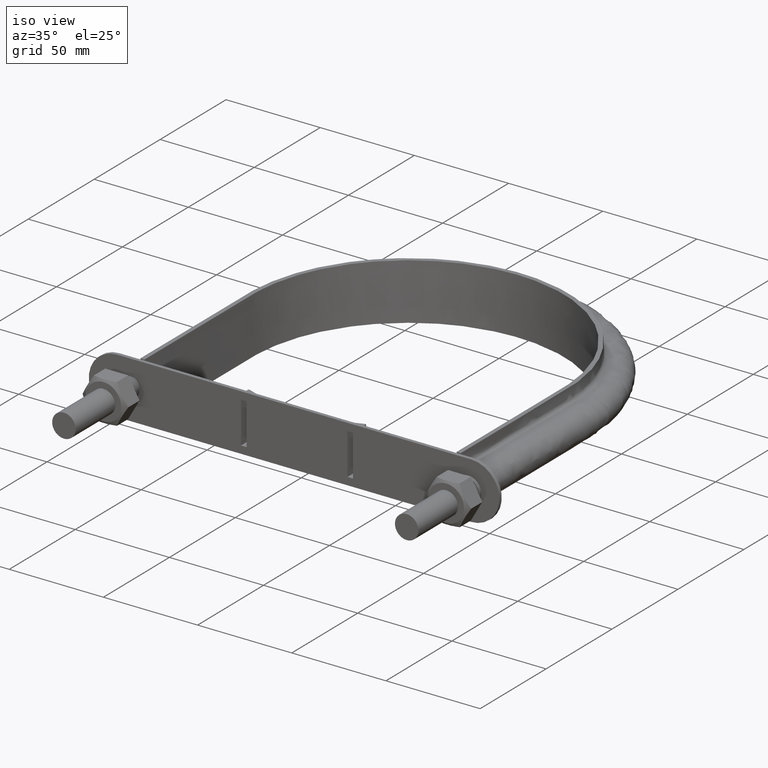
[diagram: clean part render]
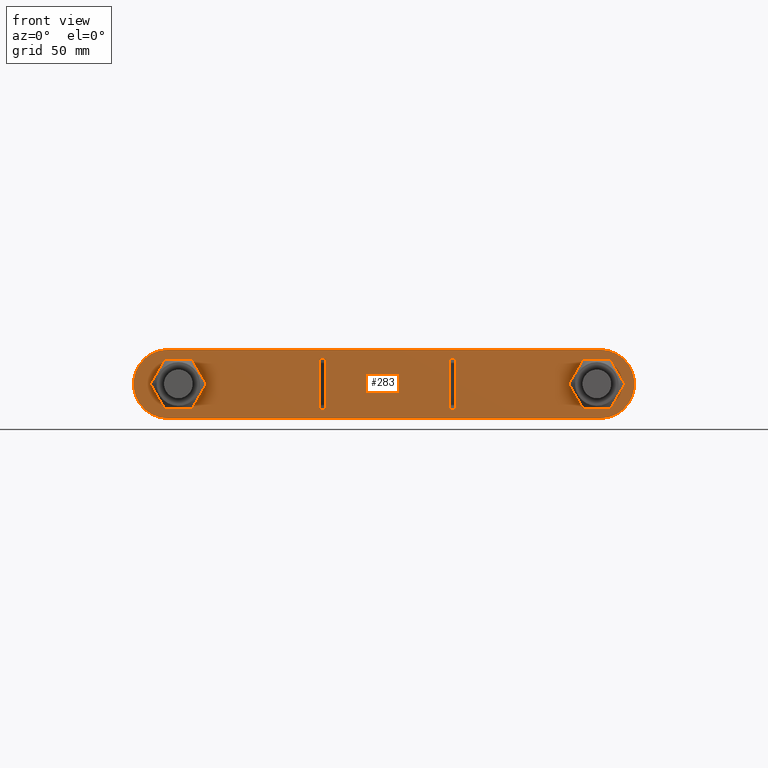
[diagram: tour spotlight — one face highlighted and labeled with its STEP entity id]
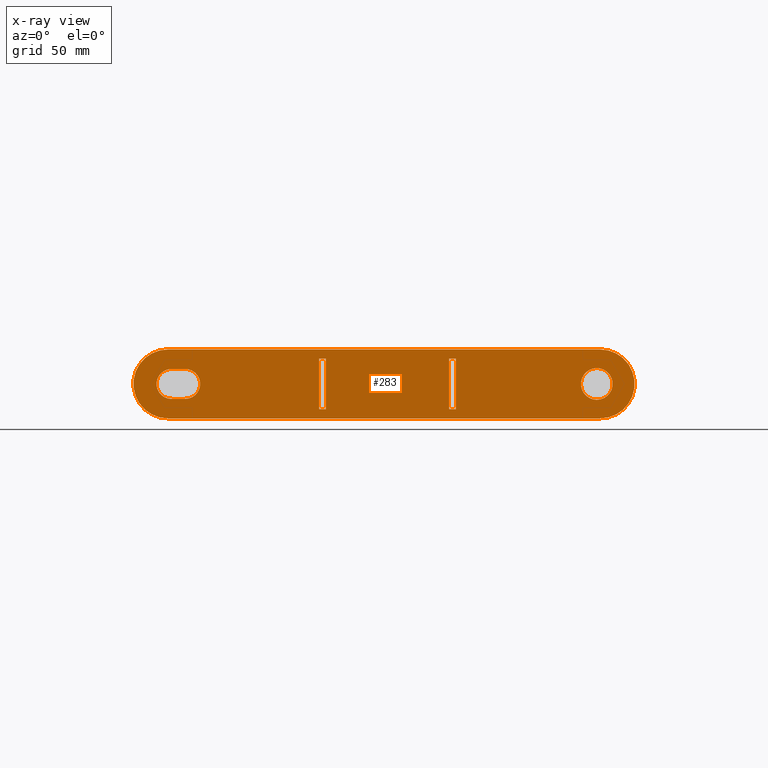
[diagram: x-ray of the same camera — body ghosted, this tour face saturated]
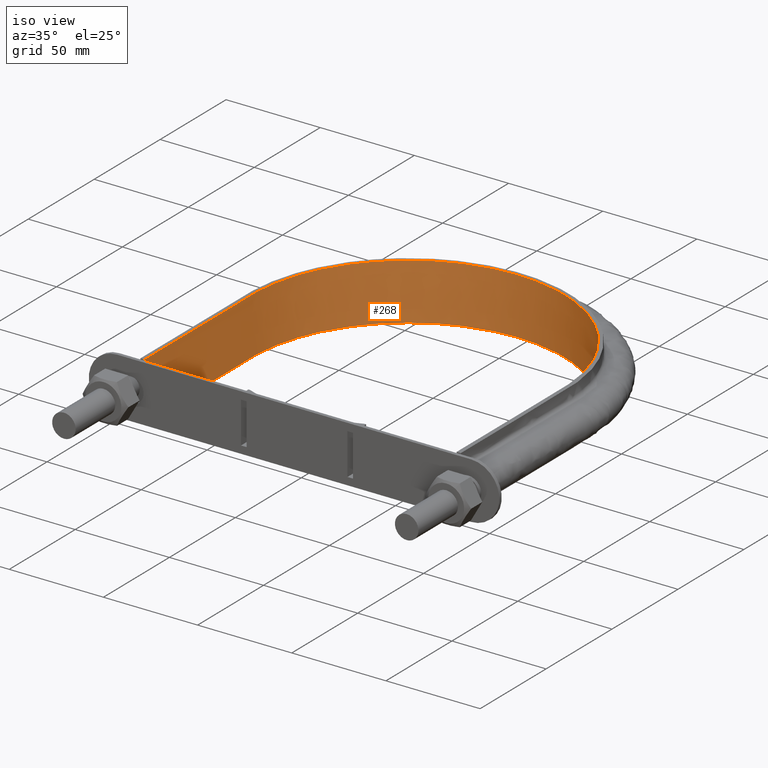
[diagram: tour spotlight — one face highlighted and labeled with its STEP entity id]
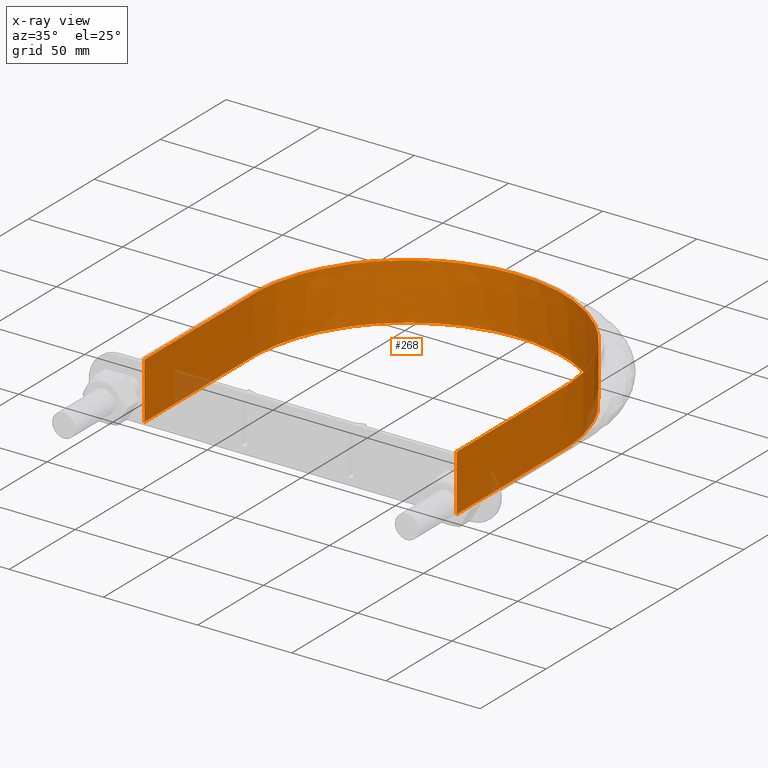
[diagram: x-ray of the same camera — body ghosted, this tour face saturated]
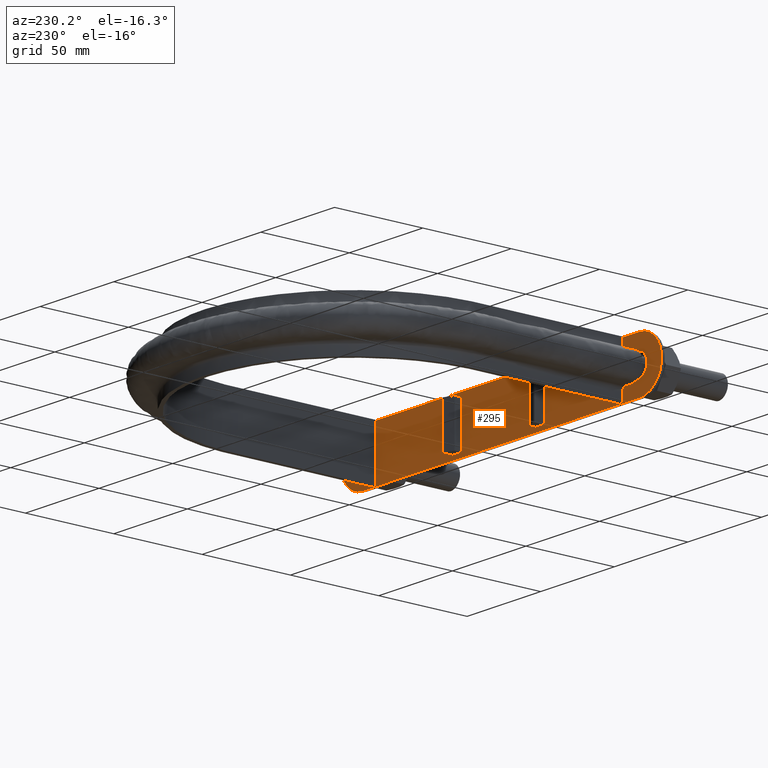
[diagram: tour spotlight — one face highlighted and labeled with its STEP entity id]
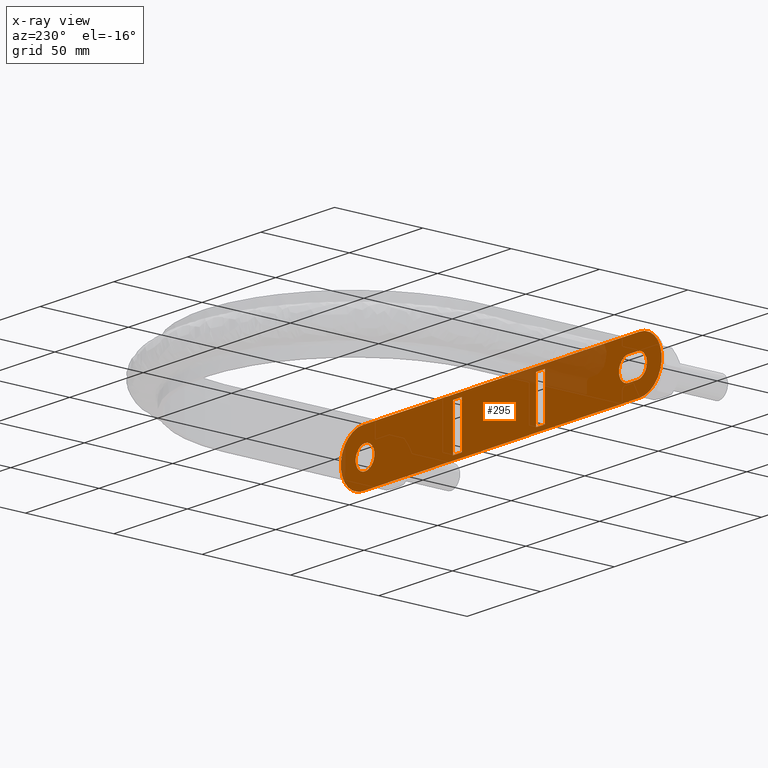
[diagram: x-ray of the same camera — body ghosted, this tour face saturated]
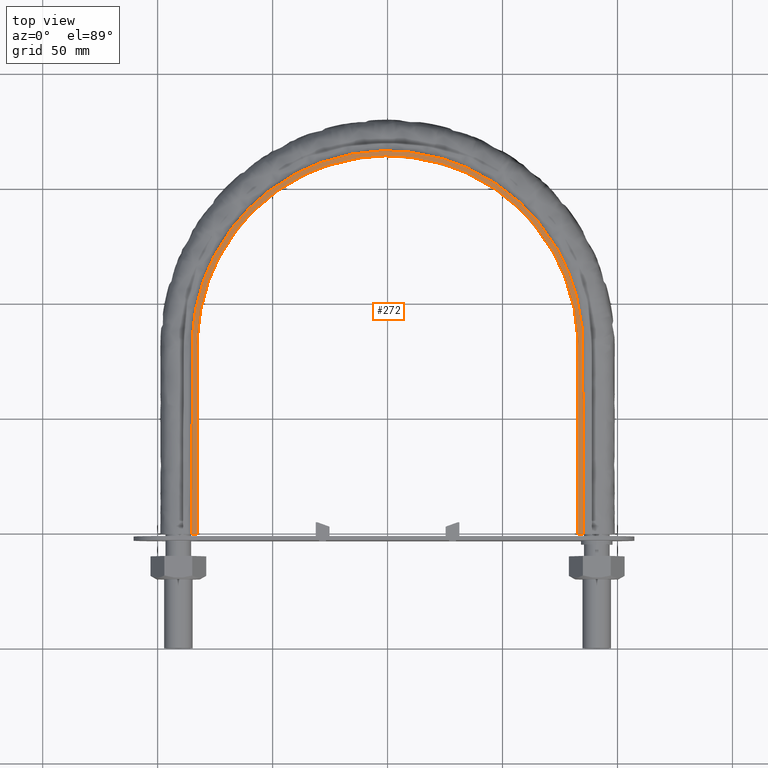
[diagram: tour spotlight — one face highlighted and labeled with its STEP entity id]
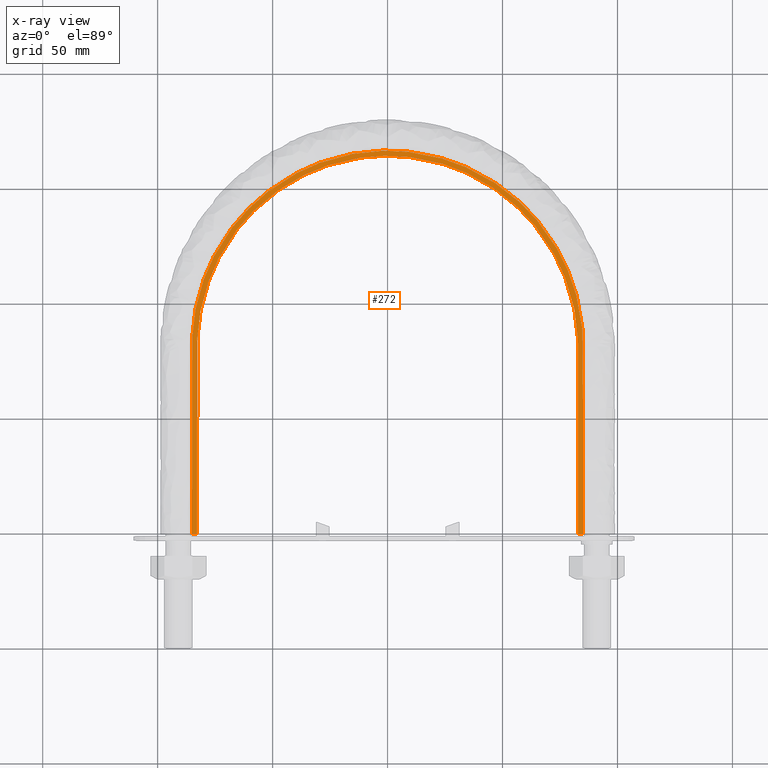
[diagram: x-ray of the same camera — body ghosted, this tour face saturated]
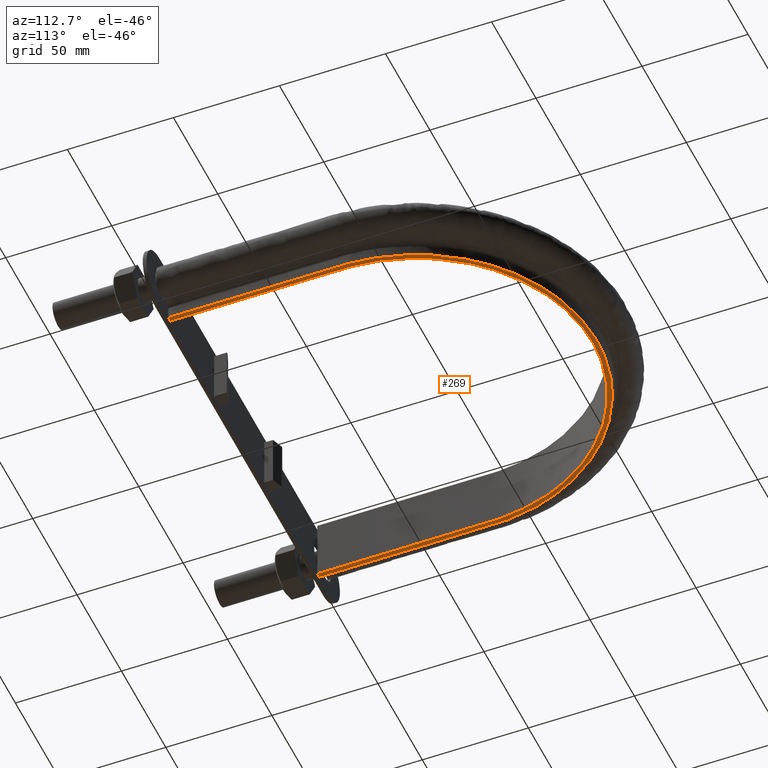
[diagram: tour spotlight — one face highlighted and labeled with its STEP entity id]
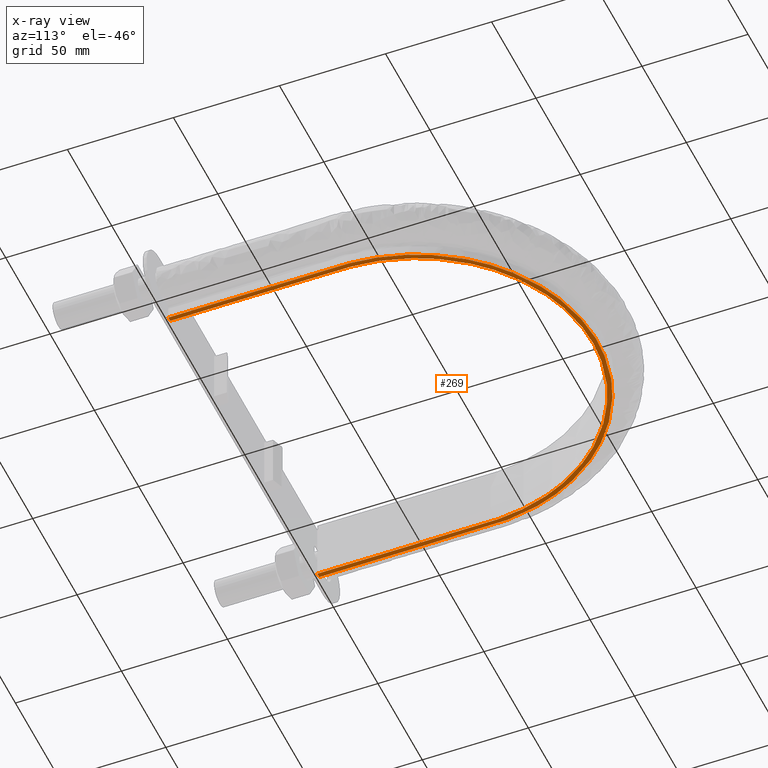
[diagram: x-ray of the same camera — body ghosted, this tour face saturated]
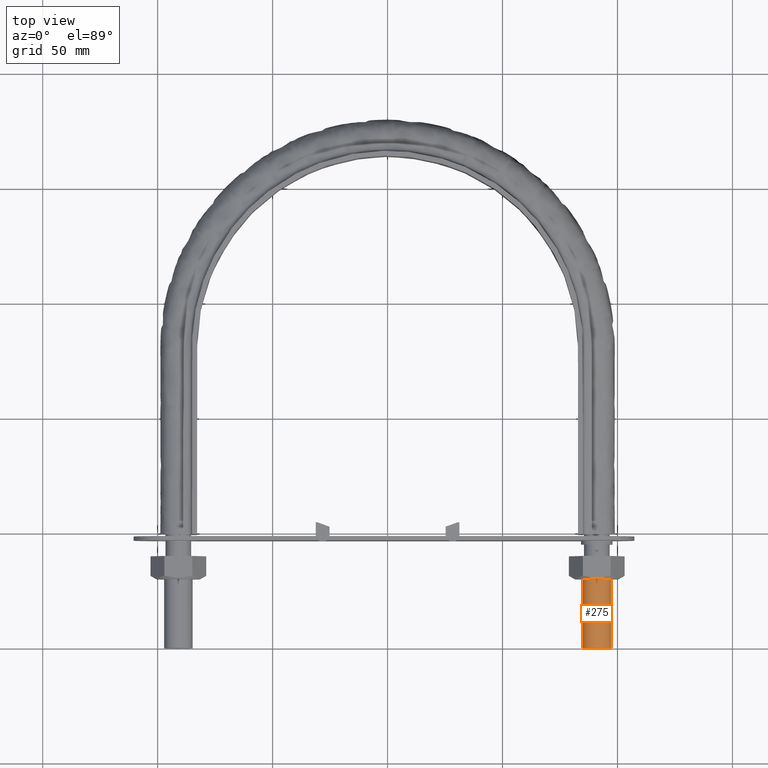
[diagram: tour spotlight — one face highlighted and labeled with its STEP entity id]
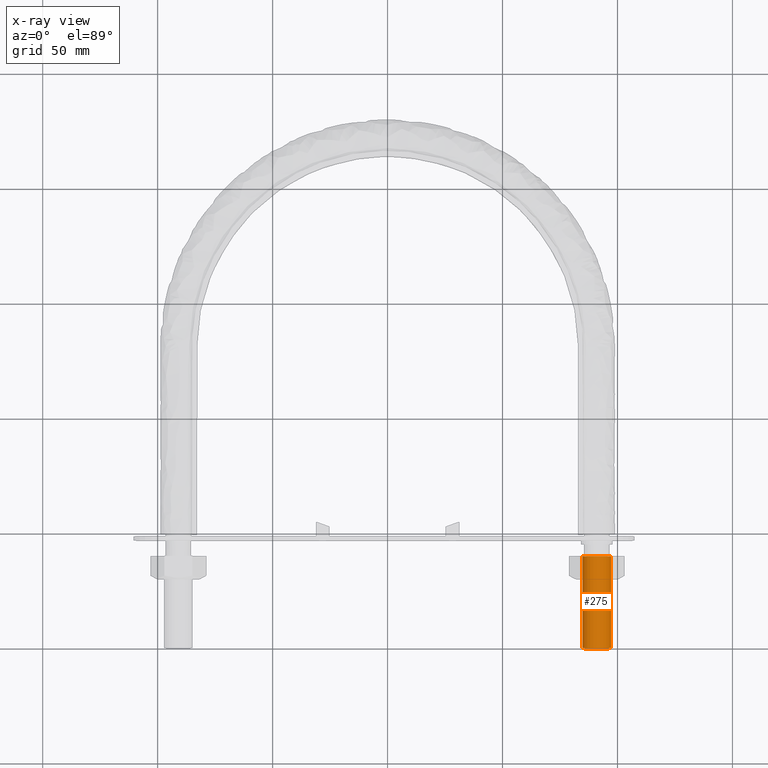
[diagram: x-ray of the same camera — body ghosted, this tour face saturated]
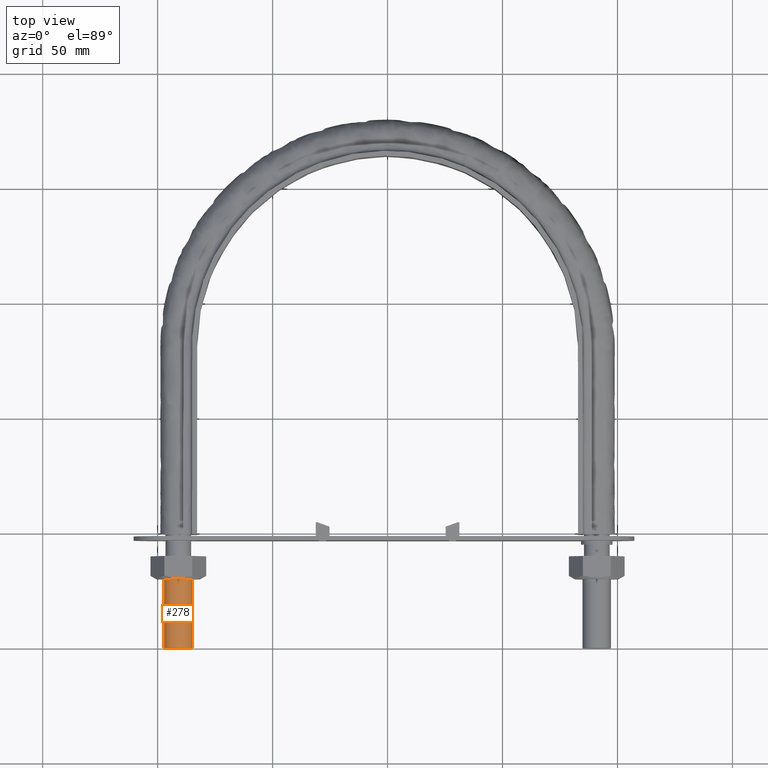
[diagram: tour spotlight — one face highlighted and labeled with its STEP entity id]
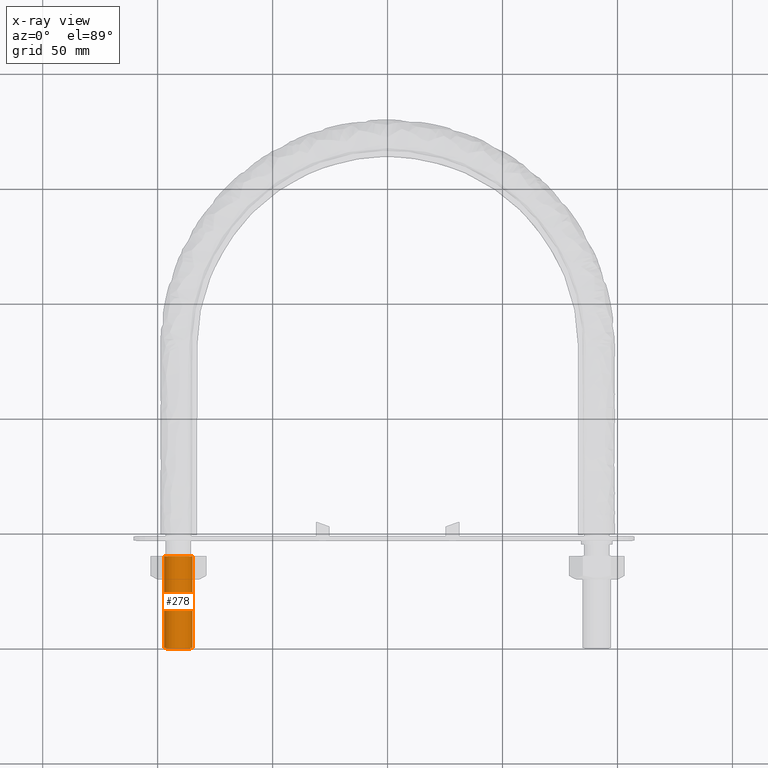
[diagram: x-ray of the same camera — body ghosted, this tour face saturated]
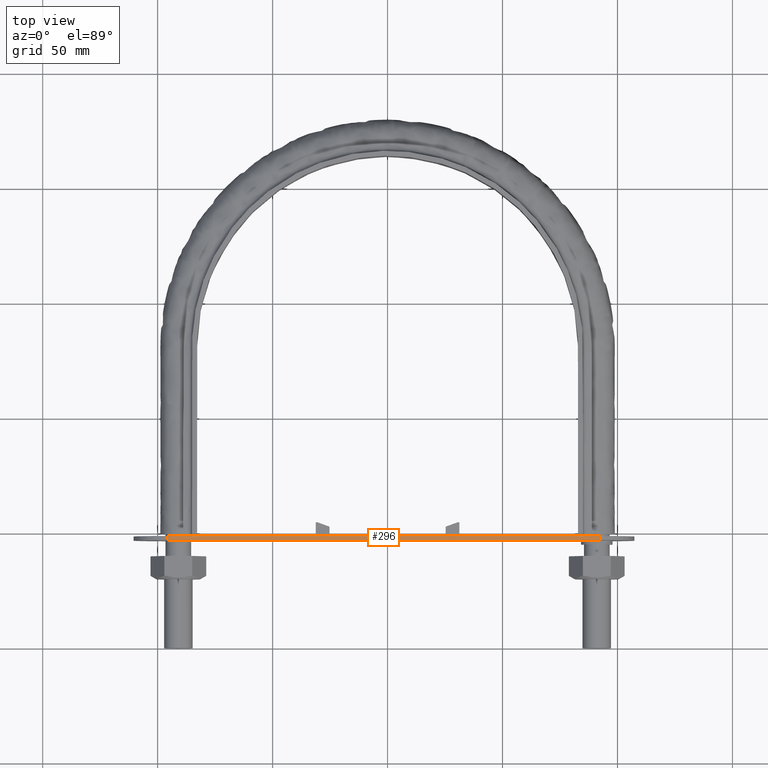
[diagram: tour spotlight — one face highlighted and labeled with its STEP entity id]
A machine part: a face-by-face anatomy tour. The part has 75 B-rep faces; the first image is the clean iso view, then the 8 largest visible faces are spotlighted one at a time (largest first), each with its STEP entity span.

Face 1 — front view, entity #283. An x-ray twin of the same camera follows (body ghosted, this face saturated) — the face is partly hidden behind the body. In plain terms, the highlighted planar face has unit normal (0, 1, 0).
Definition (entity closure, byte-faithful):
#283 = ADVANCED_FACE( '', ( #385, #386, #387, #388, #389 ), #390, .F. );
#385 = FACE_OUTER_BOUND( '', #1467, .T. );
#386 = FACE_BOUND( '', #1468, .T. );
#387 = FACE_BOUND( '', #1469, .T. );
#388 = FACE_BOUND( '', #1470, .T. );
#389 = FACE_BOUND( '', #1471, .T. );
#390 = PLANE( '', #1472 );
#1467 = EDGE_LOOP( '', ( #1734, #1735, #1736, #1737 ) );
#1468 = EDGE_LOOP( '', ( #1738, #1739, #1740, #1741 ) );
#1469 = EDGE_LOOP( '', ( #1742 ) );
#1470 = EDGE_LOOP( '', ( #1743, #1744, #1745, #1746 ) );
#1471 = EDGE_LOOP( '', ( #1747, #1748, #1749, #1750 ) );
#1472 = AXIS2_PLACEMENT_3D( '', #1751, #1752, #1753 );
#1734 = ORIENTED_EDGE( '', *, *, #2203, .F. );
#1735 = ORIENTED_EDGE( '', *, *, #2204, .F. );
#1736 = ORIENTED_EDGE( '', *, *, #2205, .F. );
#1737 = ORIENTED_EDGE( '', *, *, #2206, .F. );
#1738 = ORIENTED_EDGE( '', *, *, #2207, .F. );
#1739 = ORIENTED_EDGE( '', *, *, #2208, .T. );
#1740 = ORIENTED_EDGE( '', *, *, #2209, .T. );
#1741 = ORIENTED_EDGE( '', *, *, #2210, .F. );
#1742 = ORIENTED_EDGE( '', *, *, #2211, .T. );
#1743 = ORIENTED_EDGE( '', *, *, #2212, .F. );
#1744 = ORIENTED_EDGE( '', *, *, #2213, .F. );
#1745 = ORIENTED_EDGE( '', *, *, #2214, .F. );
#1746 = ORIENTED_EDGE( '', *, *, #2215, .F. );
#1747 = ORIENTED_EDGE( '', *, *, #2216, .T. );
#1748 = ORIENTED_EDGE( '', *, *, #2217, .T. );
#1749 = ORIENTED_EDGE( '', *, *, #2218, .F. );
#1750 = ORIENTED_EDGE( '', *, *, #2219, .F. );
#1751 = CARTESIAN_POINT( '', ( -95.5500000000000, 46.8000000000003, 7.48946739754173E-010 ) );
#1752 = DIRECTION( '', ( 1.31612346909528E-032, 1.00000000000000, 5.38325119430398E-017 ) );
#1753 = DIRECTION( '', ( 1.00000000000000, 2.73691106313441E-048, -2.44484870126044E-016 ) );
#2203 = EDGE_CURVE( '', #2399, #2400, #2401, .T. );
#2204 = EDGE_CURVE( '', #2402, #2399, #2403, .F. );
#2205 = EDGE_CURVE( '', #2404, #2402, #2405, .T. );
#2206 = EDGE_CURVE( '', #2400, #2404, #2406, .F. );
#2207 = EDGE_CURVE( '', #2407, #2408, #2409, .F. );
#2208 = EDGE_CURVE( '', #2407, #2410, #2411, .T. );
#2209 = EDGE_CURVE( '', #2410, #2412, #2413, .T. );
#2210 = EDGE_CURVE( '', #2408, #2412, #2414, .T. );
#2211 = EDGE_CURVE( '', #2415, #2415, #2416, .T. );
#2212 = EDGE_CURVE( '', #2417, #2418, #2419, .F. );
#2213 = EDGE_CURVE( '', #2420, #2417, #2421, .T. );
#2214 = EDGE_CURVE( '', #2422, #2420, #2423, .F. );
#2215 = EDGE_CURVE( '', #2418, #2422, #2424, .T. );
#2216 = EDGE_CURVE( '', #2425, #2426, #2427, .F. );
#2217 = EDGE_CURVE( '', #2426, #2428, #2429, .T. );
#2218 = EDGE_CURVE( '', #2430, #2428, #2431, .T. );
#2219 = EDGE_CURVE( '', #2425, #2430, #2432, .T. );
#2399 = VERTEX_POINT( '', #2883 );
#2400 = VERTEX_POINT( '', #2884 );
#2401 = CIRCLE( '', #2885, 15.0000000000000 );
#2402 = VERTEX_POINT( '', #2886 );
#2403 = LINE( '', #2887, #2888 );
#2404 = VERTEX_POINT( '', #2889 );
#2405 = CIRCLE( '', #2890, 15.0000000000000 );
#2406 = LINE( '', #2891, #2892 );
#2407 = VERTEX_POINT( '', #2893 );
#2408 = VERTEX_POINT( '', #2894 );
#2409 = LINE( '', #2895, #2896 );
#2410 = VERTEX_POINT( '', #2897 );
#2411 = LINE( '', #2898, #2899 );
#2412 = VERTEX_POINT( '', #2900 );
#2413 = LINE( '', #2901, #2902 );
#2414 = LINE( '', #2903, #2904 );
#2415 = VERTEX_POINT( '', #2905 );
#2416 = CIRCLE( '', #2906, 6.90000000000000 );
#2417 = VERTEX_POINT( '', #2907 );
#2418 = VERTEX_POINT( '', #2908 );
#2419 = CIRCLE( '', #2909, 6.50000000000000 );
#2420 = VERTEX_POINT( '', #2910 );
#2421 = LINE( '', #2911, #2912 );
#2422 = VERTEX_POINT( '', #2913 );
#2423 = CIRCLE( '', #2914, 6.50000000000000 );
#2424 = LINE( '', #2915, #2916 );
#2425 = VERTEX_POINT( '', #2917 );
#2426 = VERTEX_POINT( '', #2918 );
#2427 = LINE( '', #2919, #2920 );
#2428 = VERTEX_POINT( '', #2921 );
#2429 = LINE( '', #2922, #2923 );
#2430 = VERTEX_POINT( '', #2924 );
#2431 = LINE( '', #2925, #2926 );
#2432 = LINE( '', #2927, #2928 );
#2883 = CARTESIAN_POINT( '', ( -95.5500000001176, 46.8000000000003, -14.9999999992510 ) );
#2884 = CARTESIAN_POINT( '', ( -95.5499999999412, 46.8000000000003, 15.0000000007489 ) );
#2885 = AXIS2_PLACEMENT_3D( '', #3351, #3352, #3353 );
#2886 = CARTESIAN_POINT( '', ( 92.4499999998824, 46.8000000000003, -15.0000000007247 ) );
#2887 = CARTESIAN_POINT( '', ( 92.4499999998824, 46.8000000000003, -15.0000000007247 ) );
#2888 = VECTOR( '', #3354, 1000.00000000000 );
#2889 = CARTESIAN_POINT( '', ( 92.4500000000588, 46.8000000000003, 15.0000000000121 ) );
#2890 = AXIS2_PLACEMENT_3D( '', #3355, #3356, #3357 );
#2891 = CARTESIAN_POINT( '', ( -95.5499999998825, 46.8000000000003, 15.0000000007489 ) );
#2892 = VECTOR( '', #3358, 1000.00000000000 );
#2893 = CARTESIAN_POINT( '', ( -29.7500000000862, 46.8000000000003, -10.9999999997668 ) );
#2894 = CARTESIAN_POINT( '', ( -26.7500000000862, 46.8000000000003, -10.9999999997668 ) );
#2895 = CARTESIAN_POINT( '', ( -29.7500000000862, 46.8000000000003, -10.9999999997668 ) );
#2896 = VECTOR( '', #3359, 1000.00000000000 );
#2897 = CARTESIAN_POINT( '', ( -29.7499999999138, 46.8000000000003, 11.0000000002332 ) );
#2898 = CARTESIAN_POINT( '', ( -29.7500000000000, 46.8000000000003, 2.33198712500573E-010 ) );
#2899 = VECTOR( '', #3360, 1000.00000000000 );
#2900 = CARTESIAN_POINT( '', ( -26.7499999999138, 46.8000000000003, 11.0000000002332 ) );
#2901 = CARTESIAN_POINT( '', ( -95.5500000000000, 46.8000000000003, 11.0000000002332 ) );
#2902 = VECTOR( '', #3361, 1000.00000000000 );
#2903 = CARTESIAN_POINT( '', ( -26.7500000000862, 46.8000000000003, -10.9999999997903 ) );
#2904 = VECTOR( '', #3362, 1000.00000000000 );
#2905 = CARTESIAN_POINT( '', ( 91.0000000000000, 46.8000000000003, 6.89999999928670 ) );
#2906 = AXIS2_PLACEMENT_3D( '', #3363, #3364, #3365 );
#2907 = CARTESIAN_POINT( '', ( -93.9999999999745, 46.8000000000003, 6.50000000071328 ) );
#2908 = CARTESIAN_POINT( '', ( -94.0000000000510, 46.8000000000003, -6.49999999926320 ) );
#2909 = AXIS2_PLACEMENT_3D( '', #3366, #3367, #3368 );
#2910 = CARTESIAN_POINT( '', ( -87.9999999999746, 46.8000000000003, 6.50000000068976 ) );
#2911 = CARTESIAN_POINT( '', ( -87.9999999999491, 46.8000000000003, 6.50000000068976 ) );
#2912 = VECTOR( '', #3369, 1000.00000000000 );
#2913 = CARTESIAN_POINT( '', ( -88.0000000000510, 46.8000000000003, -6.49999999931023 ) );
#2914 = AXIS2_PLACEMENT_3D( '', #3370, #3371, #3372 );
#2915 = CARTESIAN_POINT( '', ( -94.0000000000510, 46.8000000000003, -6.49999999926320 ) );
#2916 = VECTOR( '', #3373, 1000.00000000000 );
#2917 = CARTESIAN_POINT( '', ( 29.7499999999137, 46.8000000000003, -11.0000000002332 ) );
#2918 = CARTESIAN_POINT( '', ( 26.7499999999137, 46.8000000000003, -11.0000000002332 ) );
#2919 = CARTESIAN_POINT( '', ( -95.5500000000000, 46.8000000000003, -11.0000000002332 ) );
#2920 = VECTOR( '', #3374, 1000.00000000000 );
#2921 = CARTESIAN_POINT( '', ( 26.7500000000862, 46.8000000000003, 10.9999999997668 ) );
#2922 = CARTESIAN_POINT( '', ( 26.7499999999999, 46.8000000000003, -2.09718399977278E-010 ) );
#2923 = VECTOR( '', #3375, 1000.00000000000 );
#2924 = CARTESIAN_POINT( '', ( 29.7500000000862, 46.8000000000003, 10.9999999997668 ) );
#2925 = CARTESIAN_POINT( '', ( 29.7500000000862, 46.8000000000003, 10.9999999997668 ) );
#2926 = VECTOR( '', #3376, 1000.00000000000 );
#2927 = CARTESIAN_POINT( '', ( 29.7499999999137, 46.8000000000003, -11.0000000002332 ) );
#2928 = VECTOR( '', #3377, 1000.00000000000 );
#3351 = CARTESIAN_POINT( '', ( -95.5500000000000, 46.8000000000003, 7.48946739754173E-010 ) );
#3352 = DIRECTION( '', ( 1.31612346909528E-032, 1.00000000000000, 5.38325119430398E-017 ) );
#3353 = DIRECTION( '', ( 0.000000000000000, -5.38325119430398E-017, 1.00000000000000 ) );
#3354 = DIRECTION( '', ( 1.00000000000000, 4.21946296651834E-028, -7.83837578177664E-012 ) );
#3355 = CARTESIAN_POINT( '', ( 92.4500000000000, 46.8000000000003, -7.24650559985076E-010 ) );
#3356 = DIRECTION( '', ( 1.31612346909528E-032, 1.00000000000000, 5.38325119430398E-017 ) );
#3357 = DIRECTION( '', ( 0.000000000000000, -5.38325119430398E-017, 1.00000000000000 ) );
#3358 = DIRECTION( '', ( -1.00000000000000, 1.31612346909755E-032, -4.21958976310680E-028 ) );
#3359 = DIRECTION( '', ( -1.00000000000000, 1.31612346908703E-032, 1.53267061879703E-027 ) );
#3360 = DIRECTION( '', ( 7.83811591570821E-012, -5.38325119430398E-017, 1.00000000000000 ) );
#3361 = DIRECTION( '', ( 1.00000000000000, -1.31612346908703E-032, -1.53267061879703E-027 ) );
#3362 = DIRECTION( '', ( 7.83811591570821E-012, -5.38325119430398E-017, 1.00000000000000 ) );
#3363 = CARTESIAN_POINT( '', ( 91.0000000000000, 46.8000000000003, -7.13300527612784E-010 ) );
#3364 = DIRECTION( '', ( 1.31612346909528E-032, 1.00000000000000, 5.38325119430398E-017 ) );
#3365 = DIRECTION( '', ( 0.000000000000000, -5.38325119430398E-017, 1.00000000000000 ) );
#3366 = CARTESIAN_POINT( '', ( -94.0000000000000, 46.8000000000003, 7.36795522568943E-010 ) );
#3367 = DIRECTION( '', ( 1.31612346909528E-032, 1.00000000000000, 5.38325119430398E-017 ) );
#3368 = DIRECTION( '', ( 0.000000000000000, -5.38325119430398E-017, 1.00000000000000 ) );
#3369 = DIRECTION( '', ( -1.00000000000000, 1.31612346909755E-032, -4.21958976310680E-028 ) );
#3370 = CARTESIAN_POINT( '', ( -88.0000000000001, 46.8000000000003, 6.89765267878283E-010 ) );
#3371 = DIRECTION( '', ( 1.31612346909528E-032, 1.00000000000000, 5.38325119430398E-017 ) );
#3372 = DIRECTION( '', ( 0.000000000000000, -5.38325119430398E-017, 1.00000000000000 ) );
#3373 = DIRECTION( '', ( 1.00000000000000, 4.21946296651834E-028, -7.83837578177664E-012 ) );
#3374 = DIRECTION( '', ( 1.00000000000000, -1.31612346908703E-032, -1.53266809220721E-027 ) );
#3375 = DIRECTION( '', ( 7.83863564784507E-012, -5.38325119430398E-017, 1.00000000000000 ) );
#3376 = DIRECTION( '', ( -1.00000000000000, 1.31612346908703E-032, 1.53266809220721E-027 ) );
#3377 = DIRECTION( '', ( 7.83863564784507E-012, -5.38325119430398E-017, 1.00000000000000 ) );

Face 2 — iso view, entity #268. An x-ray twin of the same camera follows (body ghosted, this face saturated) — the face is partly hidden behind the body. In plain terms, the highlighted face is a SurfaceOfExtrusion surface.
Definition (entity closure, byte-faithful):
#268 = ADVANCED_FACE( '', ( #346 ), #347, .T. );
#346 = FACE_OUTER_BOUND( '', #529, .T. );
#347 = SURFACE_OF_LINEAR_EXTRUSION( '', #530, #531 );
#529 = EDGE_LOOP( '', ( #1616, #1617, #1618, #1619 ) );
#530 = B_SPLINE_CURVE_WITH_KNOTS( '', 3, ( #1620, #1621, #1622, #1623, #1624, #1625, #1626, #1627, #1628, #1629, #1630, #1631, #1632, #1633, #1634, #1635, #1636 ), .UNSPECIFIED., .F., .F., ( 4, 3, 1, 1, 1, 1, 1, 1, 1, 3, 4 ), ( -10.0000000000000, -9.00000000000000, -8.00000000000000, -7.00000000000000, -6.00000000000000, -5.00000000000000, -4.00000000000000, -3.00000000000000, -2.00000000000000, -1.00000000000000, 0.000000000000000 ), .UNSPECIFIED. );
#531 = VECTOR( '', #1637, 1000.00000000000 );
#1616 = ORIENTED_EDGE( '', *, *, #2172, .F. );
#1617 = ORIENTED_EDGE( '', *, *, #2167, .F. );
#1618 = ORIENTED_EDGE( '', *, *, #2173, .T. );
#1619 = ORIENTED_EDGE( '', *, *, #2174, .T. );
#1620 = CARTESIAN_POINT( '', ( -82.8500000000000, 49.5000000000001, -278.469308654335 ) );
#1621 = CARTESIAN_POINT( '', ( -82.8500000000000, 76.7166666666667, -278.469308654335 ) );
#1622 = CARTESIAN_POINT( '', ( -82.8500000000000, 103.933333333333, -278.469308654335 ) );
#1623 = CARTESIAN_POINT( '', ( -82.8500000000000, 131.150000000000, -278.469308654335 ) );
#1624 = CARTESIAN_POINT( '', ( -82.8500000000000, 141.979512005492, -278.469308654335 ) );
#1625 = CARTESIAN_POINT( '', ( -78.5361555605724, 163.687272457852, -278.469308654335 ) );
#1626 = CARTESIAN_POINT( '', ( -60.1089711493570, 191.257212617967, -278.469308654335 ) );
#1627 = CARTESIAN_POINT( '', ( -32.5307407698323, 209.686657998112, -278.469308654335 ) );
#1628 = CARTESIAN_POINT( '', ( 5.42262588885138E-014, 216.156671000944, -278.469308654335 ) );
#1629 = CARTESIAN_POINT( '', ( 32.5307407698323, 209.686657998112, -278.469308654335 ) );
#1630 = CARTESIAN_POINT( '', ( 60.1089711493571, 191.257212617967, -278.469308654335 ) );
#1631 = CARTESIAN_POINT( '', ( 78.5361555605725, 163.687272457852, -278.469308654335 ) );
#1632 = CARTESIAN_POINT( '', ( 82.8500000000000, 141.979512005492, -278.469308654335 ) );
#1633 = CARTESIAN_POINT( '', ( 82.8500000000000, 131.150000000000, -278.469308654335 ) );
#1634 = CARTESIAN_POINT( '', ( 82.8500000000000, 103.933333333333, -278.469308654335 ) );
#1635 = CARTESIAN_POINT( '', ( 82.8500000000000, 76.7166666666667, -278.469308654335 ) );
#1636 = CARTESIAN_POINT( '', ( 82.8500000000000, 49.5000000000000, -278.469308654335 ) );
#1637 = DIRECTION( '', ( 0.000000000000000, 0.000000000000000, 1.00000000000000 ) );
#2167 = EDGE_CURVE( '', #2331, #2332, #2333, .T. );
#2172 = EDGE_CURVE( '', #2332, #2341, #2342, .T. );
#2173 = EDGE_CURVE( '', #2331, #2343, #2344, .T. );
#2174 = EDGE_CURVE( '', #2343, #2341, #2345, .T. );
#2331 = VERTEX_POINT( '', #2617 );
#2332 = VERTEX_POINT( '', #2618 );
#2333 = LINE( '', #2619, #2620 );
#2341 = VERTEX_POINT( '', #2670 );
#2342 = B_SPLINE_CURVE_WITH_KNOTS( '', 3, ( #2671, #2672, #2673, #2674, #2675, #2676, #2677, #2678, #2679, #2680, #2681, #2682, #2683, #2684, #2685, #2686, #2687 ), .UNSPECIFIED., .F., .F., ( 4, 3, 1, 1, 1, 1, 1, 1, 1, 3, 4 ), ( -10.0000000000000, -9.00000000000000, -8.00000000000000, -7.00000000000000, -6.00000000000000, -5.00000000000000, -4.00000000000000, -3.00000000000000, -2.00000000000000, -1.00000000000000, 0.000000000000000 ), .UNSPECIFIED. );
#2343 = VERTEX_POINT( '', #2688 );
#2344 = B_SPLINE_CURVE_WITH_KNOTS( '', 3, ( #2689, #2690, #2691, #2692, #2693, #2694, #2695, #2696, #2697, #2698, #2699, #2700, #2701, #2702, #2703, #2704, #2705 ), .UNSPECIFIED., .F., .F., ( 4, 3, 1, 1, 1, 1, 1, 1, 1, 3, 4 ), ( -10.0000000000000, -9.00000000000000, -8.00000000000000, -7.00000000000000, -6.00000000000000, -5.00000000000000, -4.00000000000000, -3.00000000000000, -2.00000000000000, -1.00000000000000, 0.000000000000000 ), .UNSPECIFIED. );
#2345 = LINE( '', #2706, #2707 );
#2617 = CARTESIAN_POINT( '', ( -82.8499999999999, 49.5000000000003, -15.0000000000000 ) );
#2618 = CARTESIAN_POINT( '', ( -82.8499999999999, 49.5000000000003, 15.0000000000000 ) );
#2619 = CARTESIAN_POINT( '', ( -82.8500000000000, 49.5000000000001, -278.469308654335 ) );
#2620 = VECTOR( '', #3327, 1000.00000000000 );
#2670 = CARTESIAN_POINT( '', ( 82.8500000000002, 49.5000000000003, 15.0000000000000 ) );
#2671 = CARTESIAN_POINT( '', ( -82.8500000000000, 49.5000000000001, 15.0000000000000 ) );
#2672 = CARTESIAN_POINT( '', ( -82.8500000000000, 76.7166666666667, 15.0000000000000 ) );
#2673 = CARTESIAN_POINT( '', ( -82.8500000000000, 103.933333333333, 15.0000000000000 ) );
#2674 = CARTESIAN_POINT( '', ( -82.8500000000000, 131.150000000000, 15.0000000000000 ) );
#2675 = CARTESIAN_POINT( '', ( -82.8500000000000, 141.979512005492, 15.0000000000000 ) );
#2676 = CARTESIAN_POINT( '', ( -78.5361555605724, 163.687272457852, 15.0000000000000 ) );
#2677 = CARTESIAN_POINT( '', ( -60.1089711493570, 191.257212617967, 15.0000000000000 ) );
#2678 = CARTESIAN_POINT( '', ( -32.5307407698323, 209.686657998112, 15.0000000000000 ) );
#2679 = CARTESIAN_POINT( '', ( 5.42262588885138E-014, 216.156671000944, 15.0000000000000 ) );
#2680 = CARTESIAN_POINT( '', ( 32.5307407698323, 209.686657998112, 15.0000000000000 ) );
#2681 = CARTESIAN_POINT( '', ( 60.1089711493571, 191.257212617967, 15.0000000000000 ) );
#2682 = CARTESIAN_POINT( '', ( 78.5361555605725, 163.687272457852, 15.0000000000000 ) );
#2683 = CARTESIAN_POINT( '', ( 82.8500000000000, 141.979512005492, 15.0000000000000 ) );
#2684 = CARTESIAN_POINT( '', ( 82.8500000000000, 131.150000000000, 15.0000000000000 ) );
#2685 = CARTESIAN_POINT( '', ( 82.8500000000000, 103.933333333333, 15.0000000000000 ) );
#2686 = CARTESIAN_POINT( '', ( 82.8500000000000, 76.7166666666667, 15.0000000000000 ) );
#2687 = CARTESIAN_POINT( '', ( 82.8500000000000, 49.5000000000000, 15.0000000000000 ) );
#2688 = CARTESIAN_POINT( '', ( 82.8500000000000, 49.5000000000000, -15.0000000000000 ) );
#2689 = CARTESIAN_POINT( '', ( -82.8500000000000, 49.5000000000001, -15.0000000000000 ) );
#2690 = CARTESIAN_POINT( '', ( -82.8500000000000, 76.7166666666667, -15.0000000000000 ) );
#2691 = CARTESIAN_POINT( '', ( -82.8500000000000, 103.933333333333, -15.0000000000000 ) );
#2692 = CARTESIAN_POINT( '', ( -82.8500000000000, 131.150000000000, -15.0000000000000 ) );
#2693 = CARTESIAN_POINT( '', ( -82.8500000000000, 141.979512005492, -15.0000000000000 ) );
#2694 = CARTESIAN_POINT( '', ( -78.5361555605724, 163.687272457852, -15.0000000000000 ) );
#2695 = CARTESIAN_POINT( '', ( -60.1089711493570, 191.257212617967, -15.0000000000000 ) );
#2696 = CARTESIAN_POINT( '', ( -32.5307407698323, 209.686657998112, -15.0000000000000 ) );
#2697 = CARTESIAN_POINT( '', ( 5.42262588885138E-014, 216.156671000944, -15.0000000000000 ) );
#2698 = CARTESIAN_POINT( '', ( 32.5307407698323, 209.686657998112, -15.0000000000000 ) );
#2699 = CARTESIAN_POINT( '', ( 60.1089711493571, 191.257212617967, -15.0000000000000 ) );
#2700 = CARTESIAN_POINT( '', ( 78.5361555605725, 163.687272457852, -15.0000000000000 ) );
#2701 = CARTESIAN_POINT( '', ( 82.8500000000000, 141.979512005492, -15.0000000000000 ) );
#2702 = CARTESIAN_POINT( '', ( 82.8500000000000, 131.150000000000, -15.0000000000000 ) );
#2703 = CARTESIAN_POINT( '', ( 82.8500000000000, 103.933333333333, -15.0000000000000 ) );
#2704 = CARTESIAN_POINT( '', ( 82.8500000000000, 76.7166666666667, -15.0000000000000 ) );
#2705 = CARTESIAN_POINT( '', ( 82.8500000000000, 49.5000000000000, -15.0000000000000 ) );
#2706 = CARTESIAN_POINT( '', ( 82.8500000000000, 49.5000000000000, -278.469308654335 ) );
#2707 = VECTOR( '', #3330, 1000.00000000000 );
#3327 = DIRECTION( '', ( 0.000000000000000, 0.000000000000000, 1.00000000000000 ) );
#3330 = DIRECTION( '', ( 0.000000000000000, 0.000000000000000, 1.00000000000000 ) );

Face 3 — auxiliary view, entity #295. An x-ray twin of the same camera follows (body ghosted, this face saturated) — the face is partly hidden behind the body. In plain terms, the highlighted planar face has unit normal (0, 1, 0).
Definition (entity closure, byte-faithful):
#295 = ADVANCED_FACE( '', ( #413, #414, #415, #416, #417 ), #418, .T. );
#413 = FACE_OUTER_BOUND( '', #1495, .T. );
#414 = FACE_BOUND( '', #1496, .T. );
#415 = FACE_BOUND( '', #1497, .T. );
#416 = FACE_BOUND( '', #1498, .T. );
#417 = FACE_BOUND( '', #1499, .T. );
#418 = PLANE( '', #1500 );
#1495 = EDGE_LOOP( '', ( #1832, #1833, #1834, #1835 ) );
#1496 = EDGE_LOOP( '', ( #1836, #1837, #1838, #1839 ) );
#1497 = EDGE_LOOP( '', ( #1840 ) );
#1498 = EDGE_LOOP( '', ( #1841, #1842, #1843, #1844 ) );
#1499 = EDGE_LOOP( '', ( #1845, #1846, #1847, #1848 ) );
#1500 = AXIS2_PLACEMENT_3D( '', #1849, #1850, #1851 );
#1832 = ORIENTED_EDGE( '', *, *, #2246, .T. );
#1833 = ORIENTED_EDGE( '', *, *, #2247, .T. );
#1834 = ORIENTED_EDGE( '', *, *, #2242, .T. );
#1835 = ORIENTED_EDGE( '', *, *, #2244, .T. );
#1836 = ORIENTED_EDGE( '', *, *, #2248, .T. );
#1837 = ORIENTED_EDGE( '', *, *, #2249, .T. );
#1838 = ORIENTED_EDGE( '', *, *, #2250, .F. );
#1839 = ORIENTED_EDGE( '', *, *, #2251, .F. );
#1840 = ORIENTED_EDGE( '', *, *, #2252, .F. );
#1841 = ORIENTED_EDGE( '', *, *, #2253, .F. );
#1842 = ORIENTED_EDGE( '', *, *, #2254, .F. );
#1843 = ORIENTED_EDGE( '', *, *, #2255, .F. );
#1844 = ORIENTED_EDGE( '', *, *, #2256, .F. );
#1845 = ORIENTED_EDGE( '', *, *, #2257, .F. );
#1846 = ORIENTED_EDGE( '', *, *, #2258, .T. );
#1847 = ORIENTED_EDGE( '', *, *, #2259, .T. );
#1848 = ORIENTED_EDGE( '', *, *, #2220, .F. );
#1849 = CARTESIAN_POINT( '', ( -95.5500000000000, 48.6000000000003, 7.48946836652694E-010 ) );
#1850 = DIRECTION( '', ( 1.31612346909528E-032, 1.00000000000000, 5.38325119430398E-017 ) );
#1851 = DIRECTION( '', ( 1.00000000000000, 2.73691106313441E-048, -2.44484870126044E-016 ) );
#2220 = EDGE_CURVE( '', #2433, #2434, #2435, .F. );
#2242 = EDGE_CURVE( '', #2469, #2467, #2470, .T. );
#2244 = EDGE_CURVE( '', #2467, #2472, #2473, .T. );
#2246 = EDGE_CURVE( '', #2472, #2475, #2476, .T. );
#2247 = EDGE_CURVE( '', #2475, #2469, #2477, .T. );
#2248 = EDGE_CURVE( '', #2478, #2479, #2480, .F. );
#2249 = EDGE_CURVE( '', #2479, #2481, #2482, .F. );
#2250 = EDGE_CURVE( '', #2483, #2481, #2484, .T. );
#2251 = EDGE_CURVE( '', #2478, #2483, #2485, .F. );
#2252 = EDGE_CURVE( '', #2486, #2486, #2487, .T. );
#2253 = EDGE_CURVE( '', #2488, #2489, #2490, .T. );
#2254 = EDGE_CURVE( '', #2491, #2488, #2492, .F. );
#2255 = EDGE_CURVE( '', #2493, #2491, #2494, .T. );
#2256 = EDGE_CURVE( '', #2489, #2493, #2495, .F. );
#2257 = EDGE_CURVE( '', #2496, #2433, #2497, .F. );
#2258 = EDGE_CURVE( '', #2496, #2498, #2499, .T. );
#2259 = EDGE_CURVE( '', #2498, #2434, #2500, .F. );
#2433 = VERTEX_POINT( '', #2929 );
#2434 = VERTEX_POINT( '', #2930 );
#2435 = LINE( '', #2931, #2932 );
#2467 = VERTEX_POINT( '', #2984 );
#2469 = VERTEX_POINT( '', #2987 );
#2470 = CIRCLE( '', #2988, 15.0000000000000 );
#2472 = VERTEX_POINT( '', #2991 );
#2473 = LINE( '', #2992, #2993 );
#2475 = VERTEX_POINT( '', #2996 );
#2476 = CIRCLE( '', #2997, 15.0000000000000 );
#2477 = LINE( '', #2998, #2999 );
#2478 = VERTEX_POINT( '', #3000 );
#2479 = VERTEX_POINT( '', #3001 );
#2480 = LINE( '', #3002, #3003 );
#2481 = VERTEX_POINT( '', #3004 );
#2482 = LINE( '', #3005, #3006 );
#2483 = VERTEX_POINT( '', #3007 );
#2484 = LINE( '', #3008, #3009 );
#2485 = LINE( '', #3010, #3011 );
#2486 = VERTEX_POINT( '', #3012 );
#2487 = CIRCLE( '', #3013, 6.40000000000000 );
#2488 = VERTEX_POINT( '', #3014 );
#2489 = VERTEX_POINT( '', #3015 );
#2490 = CIRCLE( '', #3016, 6.50000000000000 );
#2491 = VERTEX_POINT( '', #3017 );
#2492 = LINE( '', #3018, #3019 );
#2493 = VERTEX_POINT( '', #3020 );
#2494 = CIRCLE( '', #3021, 6.50000000000000 );
#2495 = LINE( '', #3022, #3023 );
#2496 = VERTEX_POINT( '', #3024 );
#2497 = LINE( '', #3025, #3026 );
#2498 = VERTEX_POINT( '', #3027 );
#2499 = LINE( '', #3028, #3029 );
#2500 = LINE( '', #3030, #3031 );
#2929 = CARTESIAN_POINT( '', ( 25.2500000000980, 48.6000000000003, 12.4999999997550 ) );
#2930 = CARTESIAN_POINT( '', ( 31.2500000000979, 48.6000000000003, 12.4999999997550 ) );
#2931 = CARTESIAN_POINT( '', ( 31.2500000000979, 48.6000000000003, 12.4999999997550 ) );
#2932 = VECTOR( '', #3378, 1000.00000000000 );
#2984 = CARTESIAN_POINT( '', ( 92.4499999998824, 48.6000000000003, -15.0000000007247 ) );
#2987 = CARTESIAN_POINT( '', ( 92.4500000000588, 48.6000000000003, 15.0000000000121 ) );
#2988 = AXIS2_PLACEMENT_3D( '', #3400, #3401, #3402 );
#2991 = CARTESIAN_POINT( '', ( -95.5500000001176, 48.6000000000003, -14.9999999992510 ) );
#2992 = CARTESIAN_POINT( '', ( -95.5500000001176, 48.6000000000003, -14.9999999992511 ) );
#2993 = VECTOR( '', #3404, 1000.00000000000 );
#2996 = CARTESIAN_POINT( '', ( -95.5499999999412, 48.6000000000003, 15.0000000007489 ) );
#2997 = AXIS2_PLACEMENT_3D( '', #3406, #3407, #3408 );
#2998 = CARTESIAN_POINT( '', ( -95.5500000000000, 48.6000000000003, 15.0000000007489 ) );
#2999 = VECTOR( '', #3409, 1000.00000000000 );
#3000 = CARTESIAN_POINT( '', ( -31.2500000000980, 48.6000000000003, -12.4999999997551 ) );
#3001 = CARTESIAN_POINT( '', ( -25.2500000000980, 48.6000000000003, -12.4999999998021 ) );
#3002 = CARTESIAN_POINT( '', ( -95.5500000000980, 48.6000000000003, -12.4999999992511 ) );
#3003 = VECTOR( '', #3410, 1000.00000000000 );
#3004 = CARTESIAN_POINT( '', ( -25.2499999999020, 48.6000000000003, 12.5000000001979 ) );
#3005 = CARTESIAN_POINT( '', ( -25.2500000000000, 48.6000000000003, 1.97905286896459E-010 ) );
#3006 = VECTOR( '', #3411, 1000.00000000000 );
#3007 = CARTESIAN_POINT( '', ( -31.2499999999020, 48.6000000000003, 12.5000000002449 ) );
#3008 = CARTESIAN_POINT( '', ( -31.2499999999020, 48.6000000000003, 12.5000000002449 ) );
#3009 = VECTOR( '', #3412, 1000.00000000000 );
#3010 = CARTESIAN_POINT( '', ( -31.2500000000980, 48.6000000000003, -12.4999999997551 ) );
#3011 = VECTOR( '', #3413, 1000.00000000000 );
#3012 = CARTESIAN_POINT( '', ( 91.0000000000000, 48.6000000000003, 6.39999999928670 ) );
#3013 = AXIS2_PLACEMENT_3D( '', #3414, #3415, #3416 );
#3014 = CARTESIAN_POINT( '', ( -94.0000000000510, 48.6000000000003, -6.49999999926320 ) );
#3015 = CARTESIAN_POINT( '', ( -93.9999999999745, 48.6000000000003, 6.50000000071328 ) );
#3016 = AXIS2_PLACEMENT_3D( '', #3417, #3418, #3419 );
#3017 = CARTESIAN_POINT( '', ( -88.0000000000510, 48.6000000000003, -6.49999999931023 ) );
#3018 = CARTESIAN_POINT( '', ( -94.0000000000510, 48.6000000000003, -6.49999999926320 ) );
#3019 = VECTOR( '', #3420, 1000.00000000000 );
#3020 = CARTESIAN_POINT( '', ( -87.9999999999746, 48.6000000000003, 6.50000000068976 ) );
#3021 = AXIS2_PLACEMENT_3D( '', #3421, #3422, #3423 );
#3022 = CARTESIAN_POINT( '', ( -87.9999999999491, 48.6000000000003, 6.50000000068976 ) );
#3023 = VECTOR( '', #3424, 1000.00000000000 );
#3024 = CARTESIAN_POINT( '', ( 25.2499999999020, 48.6000000000003, -12.5000000002450 ) );
#3025 = CARTESIAN_POINT( '', ( 25.2499999999020, 48.6000000000003, -12.5000000001979 ) );
#3026 = VECTOR( '', #3425, 1000.00000000000 );
#3027 = CARTESIAN_POINT( '', ( 31.2499999999020, 48.6000000000003, -12.5000000002450 ) );
#3028 = CARTESIAN_POINT( '', ( -95.5500000000000, 48.6000000000003, -12.5000000002450 ) );
#3029 = VECTOR( '', #3426, 1000.00000000000 );
#3030 = CARTESIAN_POINT( '', ( 31.2500000000000, 48.6000000000003, -2.44965944415451E-010 ) );
#3031 = VECTOR( '', #3427, 1000.00000000000 );
#3378 = DIRECTION( '', ( -1.00000000000000, 1.31612346908703E-032, 1.53266935550212E-027 ) );
#3400 = CARTESIAN_POINT( '', ( 92.4500000000000, 48.6000000000003, -7.24650463086555E-010 ) );
#3401 = DIRECTION( '', ( 1.31612346909528E-032, 1.00000000000000, 5.38325119430398E-017 ) );
#3402 = DIRECTION( '', ( 0.000000000000000, -5.38325119430398E-017, 1.00000000000000 ) );
#3404 = DIRECTION( '', ( -1.00000000000000, -4.21946296651834E-028, 7.83837578177664E-012 ) );
#3406 = CARTESIAN_POINT( '', ( -95.5500000000000, 48.6000000000003, 7.48946836652695E-010 ) );
#3407 = DIRECTION( '', ( 1.31612346909528E-032, 1.00000000000000, 5.38325119430398E-017 ) );
#3408 = DIRECTION( '', ( 0.000000000000000, -5.38325119430398E-017, 1.00000000000000 ) );
#3409 = DIRECTION( '', ( 1.00000000000000, -1.31612346909755E-032, 4.21958976310680E-028 ) );
#3410 = DIRECTION( '', ( -1.00000000000000, -4.21946296651834E-028, 7.83837578177664E-012 ) );
#3411 = DIRECTION( '', ( -7.83842887277717E-012, 5.38325119430398E-017, -1.00000000000000 ) );
#3412 = DIRECTION( '', ( 1.00000000000000, 4.21946296651834E-028, -7.83837578177664E-012 ) );
#3413 = DIRECTION( '', ( -7.83842887277717E-012, 5.38325119430398E-017, -1.00000000000000 ) );
#3414 = CARTESIAN_POINT( '', ( 91.0000000000000, 48.6000000000003, -7.13300430714262E-010 ) );
#3415 = DIRECTION( '', ( 1.31612346909528E-032, 1.00000000000000, 5.38325119430398E-017 ) );
#3416 = DIRECTION( '', ( 0.000000000000000, -5.38325119430398E-017, 1.00000000000000 ) );
#3417 = CARTESIAN_POINT( '', ( -94.0000000000000, 48.6000000000003, 7.36795619467465E-010 ) );
#3418 = DIRECTION( '', ( 1.31612346909528E-032, 1.00000000000000, 5.38325119430398E-017 ) );
#3419 = DIRECTION( '', ( 0.000000000000000, -5.38325119430398E-017, 1.00000000000000 ) );
#3420 = DIRECTION( '', ( 1.00000000000000, 4.21946296651834E-028, -7.83837578177664E-012 ) );
#3421 = CARTESIAN_POINT( '', ( -88.0000000000001, 48.6000000000003, 6.89765364776805E-010 ) );
#3422 = DIRECTION( '', ( 1.31612346909528E-032, 1.00000000000000, 5.38325119430398E-017 ) );
#3423 = DIRECTION( '', ( 0.000000000000000, -5.38325119430398E-017, 1.00000000000000 ) );
#3424 = DIRECTION( '', ( -1.00000000000000, 1.31612346909755E-032, -4.21958976310680E-028 ) );
#3425 = DIRECTION( '', ( -7.83842887277717E-012, 5.38325119430398E-017, -1.00000000000000 ) );
#3426 = DIRECTION( '', ( 1.00000000000000, -1.31612346908703E-032, -1.53266935550212E-027 ) );
#3427 = DIRECTION( '', ( -7.83842887277717E-012, 5.38325119430398E-017, -1.00000000000000 ) );

Face 4 — top view, entity #272. An x-ray twin of the same camera follows (body ghosted, this face saturated) — the face is partly hidden behind the body. In plain terms, the highlighted planar face has unit normal (0, 0, 1).
Definition (entity closure, byte-faithful):
#272 = ADVANCED_FACE( '', ( #355 ), #356, .T. );
#355 = FACE_OUTER_BOUND( '', #1065, .T. );
#356 = PLANE( '', #1066 );
#1065 = EDGE_LOOP( '', ( #1657, #1658, #1659, #1660 ) );
#1066 = AXIS2_PLACEMENT_3D( '', #1661, #1662, #1663 );
#1657 = ORIENTED_EDGE( '', *, *, #2168, .T. );
#1658 = ORIENTED_EDGE( '', *, *, #2172, .T. );
#1659 = ORIENTED_EDGE( '', *, *, #2178, .T. );
#1660 = ORIENTED_EDGE( '', *, *, #2180, .F. );
#1661 = CARTESIAN_POINT( '', ( 150.000000000000, 349.500000000000, 15.0000000000000 ) );
#1662 = DIRECTION( '', ( 0.000000000000000, 0.000000000000000, 1.00000000000000 ) );
#1663 = DIRECTION( '', ( 1.00000000000000, 0.000000000000000, 0.000000000000000 ) );
#2168 = EDGE_CURVE( '', #2334, #2332, #2335, .T. );
#2172 = EDGE_CURVE( '', #2332, #2341, #2342, .T. );
#2178 = EDGE_CURVE( '', #2341, #2349, #2351, .T. );
#2180 = EDGE_CURVE( '', #2334, #2349, #2354, .T. );
#2332 = VERTEX_POINT( '', #2618 );
#2334 = VERTEX_POINT( '', #2621 );
#2335 = LINE( '', #2622, #2623 );
#2341 = VERTEX_POINT( '', #2670 );
#2342 = B_SPLINE_CURVE_WITH_KNOTS( '', 3, ( #2671, #2672, #2673, #2674, #2675, #2676, #2677, #2678, #2679, #2680, #2681, #2682, #2683, #2684, #2685, #2686, #2687 ), .UNSPECIFIED., .F., .F., ( 4, 3, 1, 1, 1, 1, 1, 1, 1, 3, 4 ), ( -10.0000000000000, -9.00000000000000, -8.00000000000000, -7.00000000000000, -6.00000000000000, -5.00000000000000, -4.00000000000000, -3.00000000000000, -2.00000000000000, -1.00000000000000, 0.000000000000000 ), .UNSPECIFIED. );
#2349 = VERTEX_POINT( '', #2728 );
#2351 = LINE( '', #2760, #2761 );
#2354 = B_SPLINE_CURVE_WITH_KNOTS( '', 3, ( #2774, #2775, #2776, #2777, #2778, #2779, #2780, #2781, #2782, #2783, #2784, #2785, #2786, #2787, #2788, #2789, #2790 ), .UNSPECIFIED., .F., .F., ( 4, 3, 1, 1, 1, 1, 1, 1, 1, 3, 4 ), ( -10.0000000000000, -9.00000000000000, -8.00000000000000, -7.00000000000000, -6.00000000000000, -5.00000000000000, -4.00000000000000, -3.00000000000000, -2.00000000000000, -1.00000000000000, 0.000000000000000 ), .UNSPECIFIED. );
#2618 = CARTESIAN_POINT( '', ( -82.8499999999999, 49.5000000000003, 15.0000000000000 ) );
#2621 = CARTESIAN_POINT( '', ( -85.0499999999999, 49.5000000000003, 15.0000000000000 ) );
#2622 = CARTESIAN_POINT( '', ( -150.000000000000, 49.5000000000003, 15.0000000000000 ) );
#2623 = VECTOR( '', #3328, 1000.00000000000 );
#2670 = CARTESIAN_POINT( '', ( 82.8500000000002, 49.5000000000003, 15.0000000000000 ) );
#2671 = CARTESIAN_POINT( '', ( -82.8500000000000, 49.5000000000001, 15.0000000000000 ) );
#2672 = CARTESIAN_POINT( '', ( -82.8500000000000, 76.7166666666667, 15.0000000000000 ) );
#2673 = CARTESIAN_POINT( '', ( -82.8500000000000, 103.933333333333, 15.0000000000000 ) );
#2674 = CARTESIAN_POINT( '', ( -82.8500000000000, 131.150000000000, 15.0000000000000 ) );
#2675 = CARTESIAN_POINT( '', ( -82.8500000000000, 141.979512005492, 15.0000000000000 ) );
#2676 = CARTESIAN_POINT( '', ( -78.5361555605724, 163.687272457852, 15.0000000000000 ) );
#2677 = CARTESIAN_POINT( '', ( -60.1089711493570, 191.257212617967, 15.0000000000000 ) );
#2678 = CARTESIAN_POINT( '', ( -32.5307407698323, 209.686657998112, 15.0000000000000 ) );
#2679 = CARTESIAN_POINT( '', ( 5.42262588885138E-014, 216.156671000944, 15.0000000000000 ) );
#2680 = CARTESIAN_POINT( '', ( 32.5307407698323, 209.686657998112, 15.0000000000000 ) );
#2681 = CARTESIAN_POINT( '', ( 60.1089711493571, 191.257212617967, 15.0000000000000 ) );
#2682 = CARTESIAN_POINT( '', ( 78.5361555605725, 163.687272457852, 15.0000000000000 ) );
#2683 = CARTESIAN_POINT( '', ( 82.8500000000000, 141.979512005492, 15.0000000000000 ) );
#2684 = CARTESIAN_POINT( '', ( 82.8500000000000, 131.150000000000, 15.0000000000000 ) );
#2685 = CARTESIAN_POINT( '', ( 82.8500000000000, 103.933333333333, 15.0000000000000 ) );
#2686 = CARTESIAN_POINT( '', ( 82.8500000000000, 76.7166666666667, 15.0000000000000 ) );
#2687 = CARTESIAN_POINT( '', ( 82.8500000000000, 49.5000000000000, 15.0000000000000 ) );
#2728 = CARTESIAN_POINT( '', ( 85.0500000000002, 49.5000000000003, 15.0000000000000 ) );
#2760 = CARTESIAN_POINT( '', ( -150.000000000000, 49.5000000000003, 15.0000000000000 ) );
#2761 = VECTOR( '', #3332, 1000.00000000000 );
#2774 = CARTESIAN_POINT( '', ( -85.0500000000000, 49.5000000000001, 15.0000000000000 ) );
#2775 = CARTESIAN_POINT( '', ( -85.0500000000000, 76.7166666666667, 15.0000000000000 ) );
#2776 = CARTESIAN_POINT( '', ( -85.0500000000000, 103.933333333333, 15.0000000000000 ) );
#2777 = CARTESIAN_POINT( '', ( -85.0500000000000, 131.150000000000, 15.0000000000000 ) );
#2778 = CARTESIAN_POINT( '', ( -85.0500000000000, 142.271250144316, 15.0000000000000 ) );
#2779 = CARTESIAN_POINT( '', ( -80.6216056780529, 164.549331025117, 15.0000000000000 ) );
#2780 = CARTESIAN_POINT( '', ( -61.7051055673243, 192.853821731524, 15.0000000000000 ) );
#2781 = CARTESIAN_POINT( '', ( -33.3945624921452, 211.771972488282, 15.0000000000000 ) );
#2782 = CARTESIAN_POINT( '', ( 4.75638006126490E-014, 218.414013755859, 15.0000000000000 ) );
#2783 = CARTESIAN_POINT( '', ( 33.3945624921453, 211.771972488282, 15.0000000000000 ) );
#2784 = CARTESIAN_POINT( '', ( 61.7051055673243, 192.853821731524, 15.0000000000000 ) );
#2785 = CARTESIAN_POINT( '', ( 80.6216056780529, 164.549331025117, 15.0000000000000 ) );
#2786 = CARTESIAN_POINT( '', ( 85.0500000000000, 142.271250144316, 15.0000000000000 ) );
#2787 = CARTESIAN_POINT( '', ( 85.0500000000000, 131.150000000000, 15.0000000000000 ) );
#2788 = CARTESIAN_POINT( '', ( 85.0500000000000, 103.933333333333, 15.0000000000000 ) );
#2789 = CARTESIAN_POINT( '', ( 85.0500000000000, 76.7166666666667, 15.0000000000000 ) );
#2790 = CARTESIAN_POINT( '', ( 85.0500000000000, 49.5000000000000, 15.0000000000000 ) );
#3328 = DIRECTION( '', ( 1.00000000000000, -1.22460635382238E-016, 0.000000000000000 ) );
#3332 = DIRECTION( '', ( 1.00000000000000, -1.22460635382238E-016, 0.000000000000000 ) );

Face 5 — auxiliary view, entity #269. An x-ray twin of the same camera follows (body ghosted, this face saturated) — the face is partly hidden behind the body. In plain terms, the highlighted planar face has unit normal (0, 0, 1).
Definition (entity closure, byte-faithful):
#269 = ADVANCED_FACE( '', ( #348 ), #349, .F. );
#348 = FACE_OUTER_BOUND( '', #532, .T. );
#349 = PLANE( '', #533 );
#532 = EDGE_LOOP( '', ( #1638, #1639, #1640, #1641 ) );
#533 = AXIS2_PLACEMENT_3D( '', #1642, #1643, #1644 );
#1638 = ORIENTED_EDGE( '', *, *, #2173, .F. );
#1639 = ORIENTED_EDGE( '', *, *, #2170, .F. );
#1640 = ORIENTED_EDGE( '', *, *, #2175, .F. );
#1641 = ORIENTED_EDGE( '', *, *, #2176, .F. );
#1642 = CARTESIAN_POINT( '', ( 150.000000000000, 349.500000000000, -15.0000000000000 ) );
#1643 = DIRECTION( '', ( 0.000000000000000, 0.000000000000000, 1.00000000000000 ) );
#1644 = DIRECTION( '', ( 1.00000000000000, 0.000000000000000, 0.000000000000000 ) );
#2170 = EDGE_CURVE( '', #2336, #2331, #2338, .T. );
#2173 = EDGE_CURVE( '', #2331, #2343, #2344, .T. );
#2175 = EDGE_CURVE( '', #2346, #2336, #2347, .T. );
#2176 = EDGE_CURVE( '', #2343, #2346, #2348, .T. );
#2331 = VERTEX_POINT( '', #2617 );
#2336 = VERTEX_POINT( '', #2624 );
#2338 = LINE( '', #2656, #2657 );
#2343 = VERTEX_POINT( '', #2688 );
#2344 = B_SPLINE_CURVE_WITH_KNOTS( '', 3, ( #2689, #2690, #2691, #2692, #2693, #2694, #2695, #2696, #2697, #2698, #2699, #2700, #2701, #2702, #2703, #2704, #2705 ), .UNSPECIFIED., .F., .F., ( 4, 3, 1, 1, 1, 1, 1, 1, 1, 3, 4 ), ( -10.0000000000000, -9.00000000000000, -8.00000000000000, -7.00000000000000, -6.00000000000000, -5.00000000000000, -4.00000000000000, -3.00000000000000, -2.00000000000000, -1.00000000000000, 0.000000000000000 ), .UNSPECIFIED. );
#2346 = VERTEX_POINT( '', #2708 );
#2347 = B_SPLINE_CURVE_WITH_KNOTS( '', 3, ( #2709, #2710, #2711, #2712, #2713, #2714, #2715, #2716, #2717, #2718, #2719, #2720, #2721, #2722, #2723, #2724, #2725 ), .UNSPECIFIED., .F., .F., ( 4, 3, 1, 1, 1, 1, 1, 1, 1, 3, 4 ), ( 0.000000000000000, 1.00000000000000, 2.00000000000000, 3.00000000000000, 4.00000000000000, 5.00000000000000, 6.00000000000000, 7.00000000000000, 8.00000000000000, 9.00000000000000, 10.0000000000000 ), .UNSPECIFIED. );
#2348 = LINE( '', #2726, #2727 );
#2617 = CARTESIAN_POINT( '', ( -82.8499999999999, 49.5000000000003, -15.0000000000000 ) );
#2624 = CARTESIAN_POINT( '', ( -85.0499999999999, 49.5000000000003, -15.0000000000000 ) );
#2656 = CARTESIAN_POINT( '', ( -150.000000000000, 49.5000000000003, -15.0000000000000 ) );
#2657 = VECTOR( '', #3329, 1000.00000000000 );
#2688 = CARTESIAN_POINT( '', ( 82.8500000000000, 49.5000000000000, -15.0000000000000 ) );
#2689 = CARTESIAN_POINT( '', ( -82.8500000000000, 49.5000000000001, -15.0000000000000 ) );
#2690 = CARTESIAN_POINT( '', ( -82.8500000000000, 76.7166666666667, -15.0000000000000 ) );
#2691 = CARTESIAN_POINT( '', ( -82.8500000000000, 103.933333333333, -15.0000000000000 ) );
#2692 = CARTESIAN_POINT( '', ( -82.8500000000000, 131.150000000000, -15.0000000000000 ) );
#2693 = CARTESIAN_POINT( '', ( -82.8500000000000, 141.979512005492, -15.0000000000000 ) );
#2694 = CARTESIAN_POINT( '', ( -78.5361555605724, 163.687272457852, -15.0000000000000 ) );
#2695 = CARTESIAN_POINT( '', ( -60.1089711493570, 191.257212617967, -15.0000000000000 ) );
#2696 = CARTESIAN_POINT( '', ( -32.5307407698323, 209.686657998112, -15.0000000000000 ) );
#2697 = CARTESIAN_POINT( '', ( 5.42262588885138E-014, 216.156671000944, -15.0000000000000 ) );
#2698 = CARTESIAN_POINT( '', ( 32.5307407698323, 209.686657998112, -15.0000000000000 ) );
#2699 = CARTESIAN_POINT( '', ( 60.1089711493571, 191.257212617967, -15.0000000000000 ) );
#2700 = CARTESIAN_POINT( '', ( 78.5361555605725, 163.687272457852, -15.0000000000000 ) );
#2701 = CARTESIAN_POINT( '', ( 82.8500000000000, 141.979512005492, -15.0000000000000 ) );
#2702 = CARTESIAN_POINT( '', ( 82.8500000000000, 131.150000000000, -15.0000000000000 ) );
#2703 = CARTESIAN_POINT( '', ( 82.8500000000000, 103.933333333333, -15.0000000000000 ) );
#2704 = CARTESIAN_POINT( '', ( 82.8500000000000, 76.7166666666667, -15.0000000000000 ) );
#2705 = CARTESIAN_POINT( '', ( 82.8500000000000, 49.5000000000000, -15.0000000000000 ) );
#2708 = CARTESIAN_POINT( '', ( 85.0500000000002, 49.5000000000003, -15.0000000000000 ) );
#2709 = CARTESIAN_POINT( '', ( 85.0500000000000, 49.5000000000000, -15.0000000000000 ) );
#2710 = CARTESIAN_POINT( '', ( 85.0500000000000, 76.7166666666667, -15.0000000000000 ) );
#2711 = CARTESIAN_POINT( '', ( 85.0500000000000, 103.933333333333, -15.0000000000000 ) );
#2712 = CARTESIAN_POINT( '', ( 85.0500000000000, 131.150000000000, -15.0000000000000 ) );
#2713 = CARTESIAN_POINT( '', ( 85.0500000000000, 142.271250144316, -15.0000000000000 ) );
#2714 = CARTESIAN_POINT( '', ( 80.6216056780530, 164.549331025117, -15.0000000000000 ) );
#2715 = CARTESIAN_POINT( '', ( 61.7051055673243, 192.853821731524, -15.0000000000000 ) );
#2716 = CARTESIAN_POINT( '', ( 33.3945624921453, 211.771972488282, -15.0000000000000 ) );
#2717 = CARTESIAN_POINT( '', ( 5.79721414685099E-014, 218.414013755859, -15.0000000000000 ) );
#2718 = CARTESIAN_POINT( '', ( -33.3945624921452, 211.771972488282, -15.0000000000000 ) );
#2719 = CARTESIAN_POINT( '', ( -61.7051055673243, 192.853821731524, -15.0000000000000 ) );
#2720 = CARTESIAN_POINT( '', ( -80.6216056780529, 164.549331025117, -15.0000000000000 ) );
#2721 = CARTESIAN_POINT( '', ( -85.0500000000000, 142.271250144316, -15.0000000000000 ) );
#2722 = CARTESIAN_POINT( '', ( -85.0500000000000, 131.150000000000, -15.0000000000000 ) );
#2723 = CARTESIAN_POINT( '', ( -85.0499999999999, 103.933333333333, -15.0000000000000 ) );
#2724 = CARTESIAN_POINT( '', ( -85.0499999999999, 76.7166666666667, -15.0000000000000 ) );
#2725 = CARTESIAN_POINT( '', ( -85.0500000000000, 49.5000000000001, -15.0000000000000 ) );
#2726 = CARTESIAN_POINT( '', ( -150.000000000000, 49.5000000000003, -15.0000000000000 ) );
#2727 = VECTOR( '', #3331, 1000.00000000000 );
#3329 = DIRECTION( '', ( 1.00000000000000, -1.22460635382238E-016, 0.000000000000000 ) );
#3331 = DIRECTION( '', ( 1.00000000000000, -1.22460635382238E-016, 0.000000000000000 ) );

Face 6 — top view, entity #275. An x-ray twin of the same camera follows (body ghosted, this face saturated) — the face is partly hidden behind the body. In plain terms, the highlighted cylindrical surface (bore or boss wall) has radius 6.25 mm, axis along (-0, -1, 0).
Definition (entity closure, byte-faithful):
#275 = ADVANCED_FACE( '', ( #363, #364 ), #365, .T. );
#363 = FACE_OUTER_BOUND( '', #1259, .T. );
#364 = FACE_OUTER_BOUND( '', #1260, .T. );
#365 = CYLINDRICAL_SURFACE( '', #1261, 6.25000000000001 );
#1259 = EDGE_LOOP( '', ( #1678 ) );
#1260 = EDGE_LOOP( '', ( #1679 ) );
#1261 = AXIS2_PLACEMENT_3D( '', #1680, #1681, #1682 );
#1678 = ORIENTED_EDGE( '', *, *, #2190, .F. );
#1679 = ORIENTED_EDGE( '', *, *, #2191, .T. );
#1680 = CARTESIAN_POINT( '', ( 91.0000000000000, 40.0000000000000, -1.22460635382238E-014 ) );
#1681 = DIRECTION( '', ( -2.44921270764475E-016, -1.00000000000000, 3.06151588455594E-016 ) );
#1682 = DIRECTION( '', ( 1.00000000000000, -2.44921270764475E-016, 0.000000000000000 ) );
#2190 = EDGE_CURVE( '', #2373, #2373, #2374, .T. );
#2191 = EDGE_CURVE( '', #2375, #2375, #2376, .T. );
#2373 = VERTEX_POINT( '', #2833 );
#2374 = CIRCLE( '', #2834, 6.25000000000001 );
#2375 = VERTEX_POINT( '', #2835 );
#2376 = CIRCLE( '', #2836, 6.25000000000001 );
#2833 = CARTESIAN_POINT( '', ( 91.0000000000000, -1.57912352356619E-014, -6.25000000000001 ) );
#2834 = AXIS2_PLACEMENT_3D( '', #3336, #3337, #3338 );
#2835 = CARTESIAN_POINT( '', ( 91.0000000000000, 40.0000000000000, -6.25000000000002 ) );
#2836 = AXIS2_PLACEMENT_3D( '', #3339, #3340, #3341 );
#3336 = CARTESIAN_POINT( '', ( 91.0000000000000, -1.38777878078145E-014, -3.69778549322349E-029 ) );
#3337 = DIRECTION( '', ( -2.44921270764475E-016, -1.00000000000000, 3.06151588455594E-016 ) );
#3338 = DIRECTION( '', ( 0.000000000000000, -3.06151588455594E-016, -1.00000000000000 ) );
#3339 = CARTESIAN_POINT( '', ( 91.0000000000000, 40.0000000000000, -1.22460635382238E-014 ) );
#3340 = DIRECTION( '', ( -2.44921270764475E-016, -1.00000000000000, 3.06151588455594E-016 ) );
#3341 = DIRECTION( '', ( 0.000000000000000, -3.06151588455594E-016, -1.00000000000000 ) );

Face 7 — top view, entity #278. An x-ray twin of the same camera follows (body ghosted, this face saturated) — the face is partly hidden behind the body. In plain terms, the highlighted cylindrical surface (bore or boss wall) has radius 6.25 mm, axis along (-0, -1, 0).
Definition (entity closure, byte-faithful):
#278 = ADVANCED_FACE( '', ( #371, #372 ), #373, .T. );
#371 = FACE_OUTER_BOUND( '', #1453, .T. );
#372 = FACE_OUTER_BOUND( '', #1454, .T. );
#373 = CYLINDRICAL_SURFACE( '', #1455, 6.25000000000001 );
#1453 = EDGE_LOOP( '', ( #1703 ) );
#1454 = EDGE_LOOP( '', ( #1704 ) );
#1455 = AXIS2_PLACEMENT_3D( '', #1705, #1706, #1707 );
#1703 = ORIENTED_EDGE( '', *, *, #2200, .F. );
#1704 = ORIENTED_EDGE( '', *, *, #2201, .T. );
#1705 = CARTESIAN_POINT( '', ( -91.0000000000000, 40.0000000000000, -1.22460635382238E-014 ) );
#1706 = DIRECTION( '', ( -2.44921270764475E-016, -1.00000000000000, 3.06151588455594E-016 ) );
#1707 = DIRECTION( '', ( 1.00000000000000, -2.44921270764475E-016, 0.000000000000000 ) );
#2200 = EDGE_CURVE( '', #2393, #2393, #2394, .T. );
#2201 = EDGE_CURVE( '', #2395, #2395, #2396, .T. );
#2393 = VERTEX_POINT( '', #2877 );
#2394 = CIRCLE( '', #2878, 6.25000000000001 );
#2395 = VERTEX_POINT( '', #2879 );
#2396 = CIRCLE( '', #2880, 6.25000000000001 );
#2877 = CARTESIAN_POINT( '', ( -91.0000000000000, 1.19643403799670E-014, -6.25000000000001 ) );
#2878 = AXIS2_PLACEMENT_3D( '', #3342, #3343, #3344 );
#2879 = CARTESIAN_POINT( '', ( -91.0000000000000, 40.0000000000000, -6.25000000000002 ) );
#2880 = AXIS2_PLACEMENT_3D( '', #3345, #3346, #3347 );
#3342 = CARTESIAN_POINT( '', ( -91.0000000000000, 1.38777878078145E-014, -4.62223186652937E-029 ) );
#3343 = DIRECTION( '', ( -2.44921270764476E-016, -1.00000000000000, 3.06151588455594E-016 ) );
#3344 = DIRECTION( '', ( 0.000000000000000, -3.06151588455594E-016, -1.00000000000000 ) );
#3345 = CARTESIAN_POINT( '', ( -91.0000000000000, 40.0000000000000, -1.22460635382238E-014 ) );
#3346 = DIRECTION( '', ( -2.44921270764475E-016, -1.00000000000000, 3.06151588455594E-016 ) );
#3347 = DIRECTION( '', ( 0.000000000000000, -3.06151588455594E-016, -1.00000000000000 ) );

Face 8 — top view, entity #296. In plain terms, the highlighted planar face has unit normal (-0, -0, 1).
Definition (entity closure, byte-faithful):
#296 = ADVANCED_FACE( '', ( #419 ), #420, .T. );
#419 = FACE_OUTER_BOUND( '', #1501, .T. );
#420 = PLANE( '', #1502 );
#1501 = EDGE_LOOP( '', ( #1852, #1853, #1854, #1855 ) );
#1502 = AXIS2_PLACEMENT_3D( '', #1856, #1857, #1858 );
#1852 = ORIENTED_EDGE( '', *, *, #2247, .F. );
#1853 = ORIENTED_EDGE( '', *, *, #2260, .F. );
#1854 = ORIENTED_EDGE( '', *, *, #2206, .T. );
#1855 = ORIENTED_EDGE( '', *, *, #2243, .T. );
#1856 = CARTESIAN_POINT( '', ( -95.5499999998825, 46.8000000000003, 15.0000000007489 ) );
#1857 = DIRECTION( '', ( -4.21958976310680E-028, -5.38324505048212E-017, 1.00000000000000 ) );
#1858 = DIRECTION( '', ( 1.00000000000000, -7.83837578177664E-012, 0.000000000000000 ) );
#2206 = EDGE_CURVE( '', #2400, #2404, #2406, .F. );
#2243 = EDGE_CURVE( '', #2404, #2469, #2471, .T. );
#2247 = EDGE_CURVE( '', #2475, #2469, #2477, .T. );
#2260 = EDGE_CURVE( '', #2400, #2475, #2501, .T. );
#2400 = VERTEX_POINT( '', #2884 );
#2404 = VERTEX_POINT( '', #2889 );
#2406 = LINE( '', #2891, #2892 );
#2469 = VERTEX_POINT( '', #2987 );
#2471 = LINE( '', #2989, #2990 );
#2475 = VERTEX_POINT( '', #2996 );
#2477 = LINE( '', #2998, #2999 );
#2501 = LINE( '', #3032, #3033 );
#2884 = CARTESIAN_POINT( '', ( -95.5499999999412, 46.8000000000003, 15.0000000007489 ) );
#2889 = CARTESIAN_POINT( '', ( 92.4500000000588, 46.8000000000003, 15.0000000000121 ) );
#2891 = CARTESIAN_POINT( '', ( -95.5499999998825, 46.8000000000003, 15.0000000007489 ) );
#2892 = VECTOR( '', #3358, 1000.00000000000 );
#2987 = CARTESIAN_POINT( '', ( 92.4500000000588, 48.6000000000003, 15.0000000000121 ) );
#2989 = CARTESIAN_POINT( '', ( 92.4500000001176, 46.8000000000003, 14.9999999992753 ) );
#2990 = VECTOR( '', #3403, 1000.00000000000 );
#2996 = CARTESIAN_POINT( '', ( -95.5499999999412, 48.6000000000003, 15.0000000007489 ) );
#2998 = CARTESIAN_POINT( '', ( -95.5500000000000, 48.6000000000003, 15.0000000007489 ) );
#2999 = VECTOR( '', #3409, 1000.00000000000 );
#3032 = CARTESIAN_POINT( '', ( -95.5499999998825, 46.8000000000003, 15.0000000007489 ) );
#3033 = VECTOR( '', #3428, 1000.00000000000 );
#3358 = DIRECTION( '', ( -1.00000000000000, 1.31612346909755E-032, -4.21958976310680E-028 ) );
#3403 = DIRECTION( '', ( 2.44484870126044E-016, 1.00000000000000, 5.38325119430397E-017 ) );
#3409 = DIRECTION( '', ( 1.00000000000000, -1.31612346909755E-032, 4.21958976310680E-028 ) );
#3428 = DIRECTION( '', ( 2.44484870126044E-016, 1.00000000000000, 5.38325119430397E-017 ) );